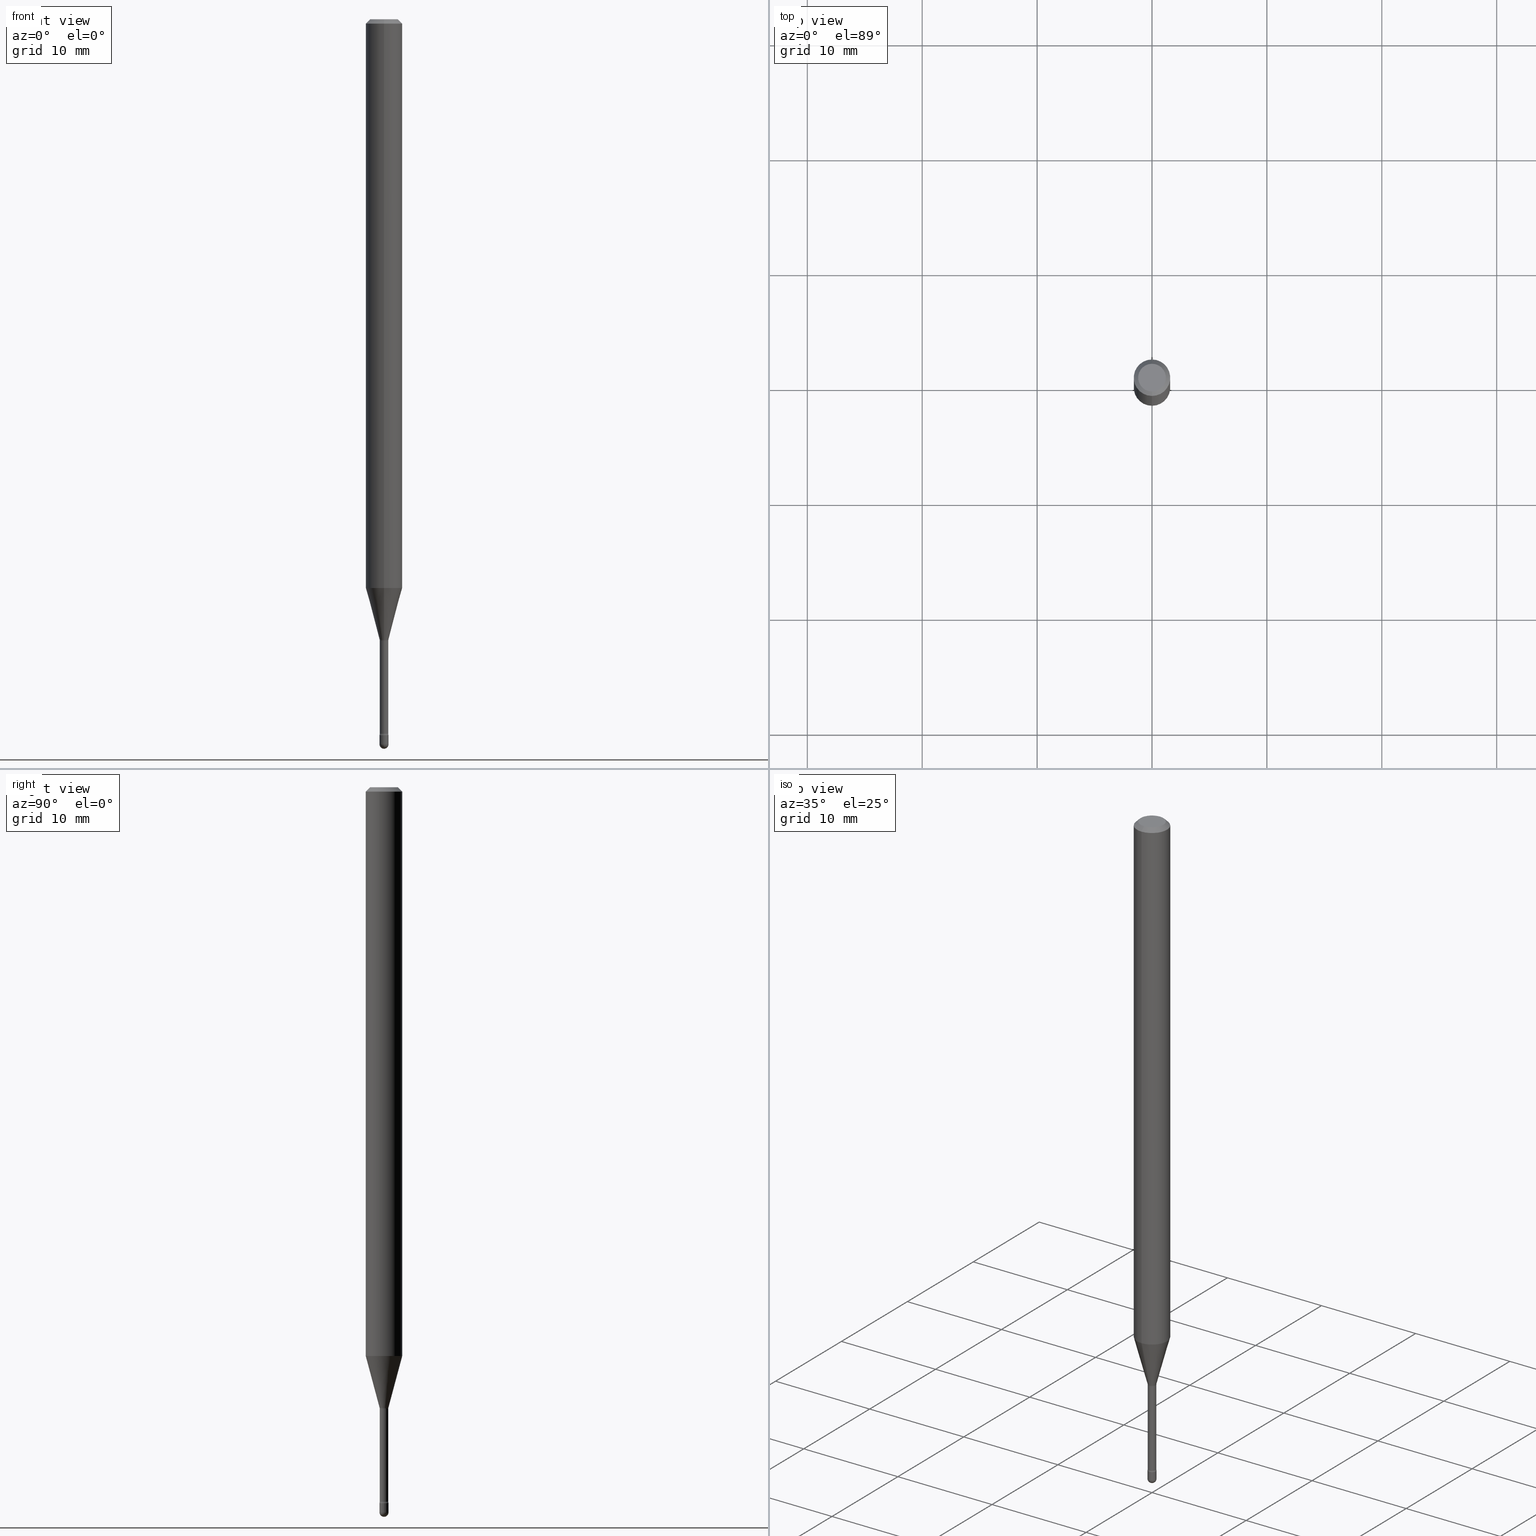
[diagram: canonical four-view strip — front | top / right | iso, engineering-drawing reading convention]
A machine part, canonical four-view strip (front | top / right | iso — engineering-drawing reading convention). The complete STEP part file that produces these views, byte-faithful:
ISO-10303-21;
HEADER;
FILE_DESCRIPTION (( 'STEP AP203' ),
    '1' );
FILE_NAME ('03891.STEP',
    '2024-04-09T20:59:21',
    ( '' ),
    ( '' ),
    'SwSTEP 2.0',
    'SolidWorks 2023',
    '' );
FILE_SCHEMA (( 'CONFIG_CONTROL_DESIGN' ));
ENDSEC;

DATA;
#1 = DIRECTION ( 'NONE',  ( -6.982962677686265922E-15, -1.000000000000000000, 0.000000000000000000 ) ) ;
#2 = ADVANCED_FACE ( 'NONE', ( #401 ), #257, .F. ) ;
#3 = CYLINDRICAL_SURFACE ( 'NONE', #440, 0.06250000000000000000 ) ;
#4 = DATE_TIME_ROLE ( 'classification_date' ) ;
#5 = DIRECTION ( 'NONE',  ( 6.982962677686265922E-15, 1.000000000000000000, -3.491476750488522114E-15 ) ) ;
#6 = AXIS2_PLACEMENT_3D ( 'NONE', #511, #562, #183 ) ;
#7 = AXIS2_PLACEMENT_3D ( 'NONE', #519, #254, #94 ) ;
#8 = CC_DESIGN_APPROVAL ( #404, ( #460 ) ) ;
#9 = LINE ( 'NONE', #140, #317 ) ;
#10 = ADVANCED_FACE ( 'NONE', ( #133 ), #397, .T. ) ;
#11 = ADVANCED_FACE ( 'NONE', ( #142 ), #232, .T. ) ;
#12 = DIRECTION ( 'NONE',  ( -2.445472010216045717E-29, 3.491476750488522114E-15, 1.000000000000000000 ) ) ;
#13 = DIRECTION ( 'NONE',  ( -4.851104656540964275E-15, -0.7071067811865500152, -0.7071067811865450192 ) ) ;
#14 = ORIENTED_EDGE ( 'NONE', *, *, #190, .F. ) ;
#15 = CIRCLE ( 'NONE', #457, 0.01455000000000002125 ) ;
#16 = LINE ( 'NONE', #516, #497 ) ;
#17 = CARTESIAN_POINT ( 'NONE',  ( 2.099653784171697547E-16, 0.02954999999999149626, -2.447746667724196357 ) ) ;
#18 = CARTESIAN_POINT ( 'NONE',  ( -1.169113584055446105E-44, 1.669184350826100908E-30, 4.780733988912460139E-16 ) ) ;
#19 = DIRECTION ( 'NONE',  ( -2.445472010216045436E-29, 3.491476750488522114E-15, 1.000000000000000000 ) ) ;
#20 = EDGE_CURVE ( 'NONE', #243, #537, #156, .T. ) ;
#21 = AXIS2_PLACEMENT_3D ( 'NONE', #312, #56, #564 ) ;
#22 = AXIS2_PLACEMENT_3D ( 'NONE', #107, #19, #322 ) ;
#23 = EDGE_LOOP ( 'NONE', ( #427, #117, #29, #294 ) ) ;
#24 = CC_DESIGN_PERSON_AND_ORGANIZATION_ASSIGNMENT ( #263, #43, ( #345 ) ) ;
#25 = EDGE_CURVE ( 'NONE', #337, #542, #448, .T. ) ;
#26 = ORIENTED_EDGE ( 'NONE', *, *, #552, .F. ) ;
#27 = EDGE_LOOP ( 'NONE', ( #517, #422, #246, #391 ) ) ;
#28 = CIRCLE ( 'NONE', #6, 0.01549999999999993744 ) ;
#29 = ORIENTED_EDGE ( 'NONE', *, *, #520, .T. ) ;
#30 = ORIENTED_EDGE ( 'NONE', *, *, #324, .T. ) ;
#31 = COORDINATED_UNIVERSAL_TIME_OFFSET ( 5, 0, .BEHIND. ) ;
#32 = LINE ( 'NONE', #221, #112 ) ;
#33 = DIRECTION ( 'NONE',  ( -2.445472010216045156E-29, 3.491476750488522114E-15, 1.000000000000000000 ) ) ;
#34 = ORIENTED_EDGE ( 'NONE', *, *, #51, .F. ) ;
#35 = DIRECTION ( 'NONE',  ( 6.982962677686265922E-15, 1.000000000000000000, -3.483106191921935554E-15 ) ) ;
#36 = FACE_OUTER_BOUND ( 'NONE', #453, .T. ) ;
#37 = CIRCLE ( 'NONE', #234, 0.01549999999999999989 ) ;
#38 = SPHERICAL_SURFACE ( 'NONE', #58, 0.01549999999999993744 ) ;
#39 = CIRCLE ( 'NONE', #138, 0.01455000000000002125 ) ;
#40 = EDGE_CURVE ( 'NONE', #325, #265, #37, .T. ) ;
#41 = DIRECTION ( 'NONE',  ( -6.982962677686265922E-15, -1.000000000000000000, 4.370956789862821150E-15 ) ) ;
#42 = DIRECTION ( 'NONE',  ( -2.445472010216045436E-29, 3.491476750488522114E-15, 1.000000000000000000 ) ) ;
#43 = PERSON_AND_ORGANIZATION_ROLE ( 'classification_officer' ) ;
#44 = LINE ( 'NONE', #176, #384 ) ;
#45 = DIRECTION ( 'NONE',  ( -2.445468806185136597E-29, 3.491481338843145583E-15, 1.000000000000000000 ) ) ;
#46 = DIRECTION ( 'NONE',  ( -2.445468806185136597E-29, 3.491481338843145583E-15, 1.000000000000000000 ) ) ;
#47 = DIRECTION ( 'NONE',  ( 1.000000000000000000, -6.982962677686238312E-15, 0.000000000000000000 ) ) ;
#48 = AXIS2_PLACEMENT_3D ( 'NONE', #361, #505, #304 ) ;
#49 = ORIENTED_EDGE ( 'NONE', *, *, #40, .F. ) ;
#50 = CC_DESIGN_APPROVAL ( #455, ( #345 ) ) ;
#51 = EDGE_CURVE ( 'NONE', #366, #162, #416, .T. ) ;
#52 = LINE ( 'NONE', #371, #406 ) ;
#53 = ORIENTED_EDGE ( 'NONE', *, *, #159, .F. ) ;
#54 = CARTESIAN_POINT ( 'NONE',  ( 4.766342731079809553E-29, -6.805056349409992834E-15, -1.949048163777072462 ) ) ;
#55 = DIRECTION ( 'NONE',  ( 7.105427357600999492E-15, 1.000000000000000000, 0.000000000000000000 ) ) ;
#56 = DIRECTION ( 'NONE',  ( -2.445468806185136597E-29, 3.491481338843145583E-15, 1.000000000000000000 ) ) ;
#57 = APPLICATION_PROTOCOL_DEFINITION ( 'international standard', 'config_control_design', 1994, #358 ) ;
#58 = AXIS2_PLACEMENT_3D ( 'NONE', #383, #334, #281 ) ;
#59 = ADVANCED_FACE ( 'NONE', ( #437 ), #411, .T. ) ;
#60 = AXIS2_PLACEMENT_3D ( 'NONE', #531, #33, #362 ) ;
#61 = DIRECTION ( 'NONE',  ( -2.445472010216045436E-29, 3.491476750488522114E-15, 1.000000000000000000 ) ) ;
#62 = APPROVAL_PERSON_ORGANIZATION ( #502, #455, #402 ) ;
#63 = EDGE_LOOP ( 'NONE', ( #208, #154, #134, #161 ) ) ;
#64 =( NAMED_UNIT ( * ) PLANE_ANGLE_UNIT ( ) SI_UNIT ( $, .RADIAN. ) );
#65 = CARTESIAN_POINT ( 'NONE',  ( -1.051711872097297299E-16, -0.01506111260567140342, -2.126092501787273381 ) ) ;
#66 = EDGE_LOOP ( 'NONE', ( #26, #331 ) ) ;
#67 = ADVANCED_FACE ( 'NONE', ( #447 ), #415, .T. ) ;
#68 = ORIENTED_EDGE ( 'NONE', *, *, #20, .F. ) ;
#69 = AXIS2_PLACEMENT_3D ( 'NONE', #446, #409, #526 ) ;
#70 = ORIENTED_EDGE ( 'NONE', *, *, #227, .F. ) ;
#71 = EDGE_LOOP ( 'NONE', ( #538, #425, #110, #14 ) ) ;
#72 = PLANE ( 'NONE',  #247 ) ;
#73 = PERSON_AND_ORGANIZATION ( #494, #200 ) ;
#74 = ORIENTED_EDGE ( 'NONE', *, *, #430, .T. ) ;
#75 = DATE_AND_TIME ( #462, #261 ) ;
#76 = AXIS2_PLACEMENT_3D ( 'NONE', #471, #351, #313 ) ;
#77 = EDGE_LOOP ( 'NONE', ( #501, #488, #303, #68 ) ) ;
#78 = PERSON_AND_ORGANIZATION ( #494, #200 ) ;
#79 = EDGE_LOOP ( 'NONE', ( #370, #431, #81, #536 ) ) ;
#80 = CARTESIAN_POINT ( 'NONE',  ( -1.169113584055446105E-44, 1.669184350826100908E-30, 4.780733988912460139E-16 ) ) ;
#81 = ORIENTED_EDGE ( 'NONE', *, *, #329, .F. ) ;
#82 = DATE_AND_TIME ( #175, #451 ) ;
#83 = LINE ( 'NONE', #563, #158 ) ;
#84 = ADVANCED_FACE ( 'NONE', ( #218 ), #456, .T. ) ;
#85 = DIRECTION ( 'NONE',  ( -2.445472010216045436E-29, 3.491476750488522114E-15, 1.000000000000000000 ) ) ;
#86 = COORDINATED_UNIVERSAL_TIME_OFFSET ( 5, 0, .BEHIND. ) ;
#87 = EDGE_CURVE ( 'NONE', #508, #150, #195, .T. ) ;
#88 = DIRECTION ( 'NONE',  ( -6.982962677686265922E-15, -1.000000000000000000, 3.491476750488521720E-15 ) ) ;
#89 = DIRECTION ( 'NONE',  ( -2.445468806185136597E-29, 3.491481338843145583E-15, 1.000000000000000000 ) ) ;
#90 = CARTESIAN_POINT ( 'NONE',  ( 5.208786900703566889E-29, -7.436767222636291946E-15, -2.129974787463811303 ) ) ;
#91 = CALENDAR_DATE ( 2024, 9, 4 ) ;
#92 = CIRCLE ( 'NONE', #185, 0.01549999999999999989 ) ;
#93 = CARTESIAN_POINT ( 'NONE',  ( 3.668208015324088579E-31, -5.237215125732812531E-17, -0.01500000000000008271 ) ) ;
#94 = DIRECTION ( 'NONE',  ( -6.982962677686266711E-15, -1.000000000000000000, 3.491476750488522508E-15 ) ) ;
#95 = DIRECTION ( 'NONE',  ( -6.982962677686265922E-15, -1.000000000000000000, 3.491476750488522114E-15 ) ) ;
#96 = ADVANCED_FACE ( 'NONE', ( #356 ), #38, .T. ) ;
#97 = DIRECTION ( 'NONE',  ( 6.982962677686265922E-15, 1.000000000000000000, -3.483106191921935554E-15 ) ) ;
#98 = CIRCLE ( 'NONE', #368, 0.01500000000000002373 ) ;
#99 = DIRECTION ( 'NONE',  ( -2.445472010216045436E-29, 3.491476750488522114E-15, 1.000000000000000000 ) ) ;
#100 = PLANE ( 'NONE',  #435 ) ;
#101 = CARTESIAN_POINT ( 'NONE',  ( 3.668208015324088579E-31, -5.237215125732812531E-17, -0.01500000000000008271 ) ) ;
#102 = DIRECTION ( 'NONE',  ( -2.445472010216045436E-29, 3.491476750488522114E-15, 1.000000000000000000 ) ) ;
#103 = CARTESIAN_POINT ( 'NONE',  ( 0.000000000000000000, 0.000000000000000000, 0.000000000000000000 ) ) ;
#104 = CC_DESIGN_PERSON_AND_ORGANIZATION_ASSIGNMENT ( #233, #357, ( #452 ) ) ;
#105 = CARTESIAN_POINT ( 'NONE',  ( 6.075767248966972494E-29, -8.674585386355795965E-15, -2.484500000000000153 ) ) ;
#106 = VECTOR ( 'NONE', #414, 39.37007874015748143 ) ;
#107 = CARTESIAN_POINT ( 'NONE',  ( 5.985888121363136129E-29, -8.546261812574526278E-15, -2.447746667724196357 ) ) ;
#108 = VERTEX_POINT ( 'NONE', #157 ) ;
#109 = EDGE_CURVE ( 'NONE', #150, #291, #343, .T. ) ;
#110 = ORIENTED_EDGE ( 'NONE', *, *, #20, .T. ) ;
#111 = VERTEX_POINT ( 'NONE', #240 ) ;
#112 = VECTOR ( 'NONE', #389, 39.37007874015748854 ) ;
#113 = AXIS2_PLACEMENT_3D ( 'NONE', #275, #442, #97 ) ;
#114 = DIMENSIONAL_EXPONENTS ( 1.000000000000000000, 0.000000000000000000, 0.000000000000000000, 0.000000000000000000, 0.000000000000000000, 0.000000000000000000, 0.000000000000000000 ) ;
#115 = ORIENTED_EDGE ( 'NONE', *, *, #25, .F. ) ;
#116 = DIRECTION ( 'NONE',  ( -2.445468806185136597E-29, 3.491481338843145583E-15, 1.000000000000000000 ) ) ;
#117 = ORIENTED_EDGE ( 'NONE', *, *, #394, .T. ) ;
#118 = APPROVAL_STATUS ( 'not_yet_approved' ) ;
#119 = ADVANCED_FACE ( 'NONE', ( #289 ), #72, .F. ) ;
#120 = ORIENTED_EDGE ( 'NONE', *, *, #227, .T. ) ;
#121 = CIRCLE ( 'NONE', #506, 0.01549999999999993744 ) ;
#122 = FACE_OUTER_BOUND ( 'NONE', #503, .T. ) ;
#123 = ORIENTED_EDGE ( 'NONE', *, *, #153, .F. ) ;
#124 = CC_DESIGN_PERSON_AND_ORGANIZATION_ASSIGNMENT ( #338, #336, ( #460 ) ) ;
#125 = FACE_OUTER_BOUND ( 'NONE', #204, .T. ) ;
#126 = DIRECTION ( 'NONE',  ( 7.105427357601001859E-15, 1.000000000000000000, 0.000000000000000000 ) ) ;
#127 = CARTESIAN_POINT ( 'NONE',  ( -0.01549999999999999989, 1.101341240428155280E-16, -7.624349389895103058E-31 ) ) ;
#128 = CARTESIAN_POINT ( 'NONE',  ( 1.101341240428755801E-16, 0.01549999999999144597, -2.452999999999999847 ) ) ;
#129 = CARTESIAN_POINT ( 'NONE',  ( -1.016021069602831037E-16, -0.01455000000000743893, -2.129974787463811303 ) ) ;
#130 = EDGE_LOOP ( 'NONE', ( #70, #551, #49, #284 ) ) ;
#131 = CARTESIAN_POINT ( 'NONE',  ( 5.998734981572139453E-29, -8.564603724182235719E-15, -2.452999999999999847 ) ) ;
#132 = AXIS2_PLACEMENT_3D ( 'NONE', #101, #365, #273 ) ;
#133 = FACE_OUTER_BOUND ( 'NONE', #288, .T. ) ;
#134 = ORIENTED_EDGE ( 'NONE', *, *, #283, .F. ) ;
#135 = CARTESIAN_POINT ( 'NONE',  ( 0.01549999999999999989, -1.082359215041371286E-16, 7.558074002483699918E-31 ) ) ;
#136 = APPROVAL_ROLE ( '' ) ;
#137 = LINE ( 'NONE', #545, #106 ) ;
#138 = AXIS2_PLACEMENT_3D ( 'NONE', #326, #99, #449 ) ;
#139 = DIRECTION ( 'NONE',  ( -2.445472010216045717E-29, 3.491476750488522114E-15, 1.000000000000000000 ) ) ;
#140 = CARTESIAN_POINT ( 'NONE',  ( 1.033839680530946418E-16, 0.01455000000000001084, 4.272724121716380271E-16 ) ) ;
#141 = SHAPE_DEFINITION_REPRESENTATION ( #369, #408 ) ;
#142 = FACE_OUTER_BOUND ( 'NONE', #458, .T. ) ;
#143 = CC_DESIGN_PERSON_AND_ORGANIZATION_ASSIGNMENT ( #78, #509, ( #485 ) ) ;
#144 = DIRECTION ( 'NONE',  ( -2.445472010216045436E-29, 3.491476750488522114E-15, 1.000000000000000000 ) ) ;
#145 = CARTESIAN_POINT ( 'NONE',  ( 5.208793725208621323E-29, -7.436757449556626485E-15, -2.129974787463811303 ) ) ;
#146 = CARTESIAN_POINT ( 'NONE',  ( 2.023576156042687140E-45, -2.889079060357795075E-31, -8.274725001839003954E-17 ) ) ;
#147 = VERTEX_POINT ( 'NONE', #128 ) ;
#148 = MANIFOLD_SOLID_BREP ( 'Body-Move/Copy2[2]', #359 ) ;
#149 = FACE_OUTER_BOUND ( 'NONE', #388, .T. ) ;
#150 = VERTEX_POINT ( 'NONE', #399 ) ;
#151 = AXIS2_PLACEMENT_3D ( 'NONE', #267, #226, #189 ) ;
#152 =( NAMED_UNIT ( * ) SI_UNIT ( $, .STERADIAN. ) SOLID_ANGLE_UNIT ( ) );
#153 = EDGE_CURVE ( 'NONE', #542, #111, #32, .T. ) ;
#154 = ORIENTED_EDGE ( 'NONE', *, *, #423, .T. ) ;
#155 = ORIENTED_EDGE ( 'NONE', *, *, #153, .T. ) ;
#156 = CIRCLE ( 'NONE', #477, 0.01455000000000000217 ) ;
#157 = CARTESIAN_POINT ( 'NONE',  ( -4.364351673553439926E-16, -0.06250000000000681399, -1.949048163777072240 ) ) ;
#158 = VECTOR ( 'NONE', #139, 39.37007874015748143 ) ;
#159 = EDGE_CURVE ( 'NONE', #162, #421, #44, .T. ) ;
#160 = APPLICATION_PROTOCOL_DEFINITION ( 'international standard', 'config_control_design', 1994, #290 ) ;
#161 = ORIENTED_EDGE ( 'NONE', *, *, #379, .F. ) ;
#162 = VERTEX_POINT ( 'NONE', #253 ) ;
#163 = APPROVAL_STATUS ( 'not_yet_approved' ) ;
#164 = ORIENTED_EDGE ( 'NONE', *, *, #269, .F. ) ;
#165 = DATE_AND_TIME ( #91, #270 ) ;
#166 = DIRECTION ( 'NONE',  ( -2.445472010216045436E-29, 3.491476750488522114E-15, 1.000000000000000000 ) ) ;
#167 = VERTEX_POINT ( 'NONE', #300 ) ;
#168 = COORDINATED_UNIVERSAL_TIME_OFFSET ( 5, 0, .BEHIND. ) ;
#169 = ADVANCED_FACE ( 'NONE', ( #170 ), #205, .F. ) ;
#170 = FACE_OUTER_BOUND ( 'NONE', #27, .T. ) ;
#171 = CIRCLE ( 'NONE', #393, 0.01549999999999999989 ) ;
#172 = DIRECTION ( 'NONE',  ( 1.000000000000000000, -6.982962677686301420E-15, 0.000000000000000000 ) ) ;
#173 = EDGE_CURVE ( 'NONE', #335, #464, #276, .T. ) ;
#174 = DIRECTION ( 'NONE',  ( -6.982962677686266711E-15, -1.000000000000000000, 3.491476750488522508E-15 ) ) ;
#175 = CALENDAR_DATE ( 2024, 9, 4 ) ;
#176 = CARTESIAN_POINT ( 'NONE',  ( 4.364351673553919652E-16, 0.06249999999999995143, -0.01500000000000030129 ) ) ;
#177 = DIRECTION ( 'NONE',  ( -6.982962677686265922E-15, -1.000000000000000000, 3.491476750488521720E-15 ) ) ;
#178 = DIRECTION ( 'NONE',  ( -6.982962677686265922E-15, -1.000000000000000000, 0.000000000000000000 ) ) ;
#179 = PERSON_AND_ORGANIZATION_ROLE ( 'design_supplier' ) ;
#180 = DIRECTION ( 'NONE',  ( -1.000000000000000000, 7.105427357601001070E-15, -4.926315508542082329E-29 ) ) ;
#181 = DIRECTION ( 'NONE',  ( -6.982962677686265922E-15, -1.000000000000000000, 0.000000000000000000 ) ) ;
#182 = DIRECTION ( 'NONE',  ( -6.982962677686266711E-15, -1.000000000000000000, 0.000000000000000000 ) ) ;
#183 = DIRECTION ( 'NONE',  ( 6.982962677686265922E-15, 1.000000000000000000, 0.000000000000000000 ) ) ;
#184 = CARTESIAN_POINT ( 'NONE',  ( 4.440892098500625669E-16, 0.06250000000000000000, 2.598561019857134311E-16 ) ) ;
#185 = AXIS2_PLACEMENT_3D ( 'NONE', #260, #405, #181 ) ;
#186 = FACE_OUTER_BOUND ( 'NONE', #320, .T. ) ;
#187 = PLANE ( 'NONE',  #60 ) ;
#188 = EDGE_CURVE ( 'NONE', #554, #265, #28, .T. ) ;
#189 = DIRECTION ( 'NONE',  ( -6.982962677686265922E-15, -1.000000000000000000, 3.491476750488522114E-15 ) ) ;
#190 = EDGE_CURVE ( 'NONE', #337, #537, #327, .T. ) ;
#191 = ORIENTED_EDGE ( 'NONE', *, *, #244, .T. ) ;
#192 = AXIS2_PLACEMENT_3D ( 'NONE', #355, #210, #126 ) ;
#193 = DIRECTION ( 'NONE',  ( -2.445472010216045436E-29, 3.491476750488522114E-15, 1.000000000000000000 ) ) ;
#194 = CARTESIAN_POINT ( 'NONE',  ( -1.016021069602754616E-16, -0.01455000000000856650, -2.447746667724196357 ) ) ;
#195 = LINE ( 'NONE', #127, #286 ) ;
#196 = VERTEX_POINT ( 'NONE', #346 ) ;
#197 = CARTESIAN_POINT ( 'NONE',  ( 1.067590460480150938E-16, 0.01454999999999147600, -2.447746667724196357 ) ) ;
#198 = ADVANCED_FACE ( 'NONE', ( #125 ), #224, .T. ) ;
#199 = AXIS2_PLACEMENT_3D ( 'NONE', #18, #42, #302 ) ;
#200 = ORGANIZATION ( 'UNSPECIFIED', 'UNSPECIFIED', '' ) ;
#201 = ORIENTED_EDGE ( 'NONE', *, *, #378, .F. ) ;
#202 = ORIENTED_EDGE ( 'NONE', *, *, #51, .T. ) ;
#203 = EDGE_CURVE ( 'NONE', #542, #337, #463, .T. ) ;
#204 = EDGE_LOOP ( 'NONE', ( #164, #557, #245, #30 ) ) ;
#205 = TOROIDAL_SURFACE ( 'NONE', #522, 0.02955000000000004151, 0.01500000000000002200 ) ;
#206 = CIRCLE ( 'NONE', #132, 0.06250000000000000000 ) ;
#207 = ORIENTED_EDGE ( 'NONE', *, *, #109, .T. ) ;
#208 = ORIENTED_EDGE ( 'NONE', *, *, #285, .T. ) ;
#209 = COORDINATED_UNIVERSAL_TIME_OFFSET ( 5, 0, .BEHIND. ) ;
#210 = DIRECTION ( 'NONE',  ( 1.000000000000000000, -7.105427357601001070E-15, 4.926315452350944372E-29 ) ) ;
#211 = ORIENTED_EDGE ( 'NONE', *, *, #203, .T. ) ;
#212 = APPROVAL_DATE_TIME ( #82, #444 ) ;
#213 = AXIS2_PLACEMENT_3D ( 'NONE', #549, #116, #500 ) ;
#214 = AXIS2_PLACEMENT_3D ( 'NONE', #486, #315, #540 ) ;
#215 =( LENGTH_UNIT ( ) NAMED_UNIT ( * ) SI_UNIT ( $, .METRE. ) );
#216 = ORIENTED_EDGE ( 'NONE', *, *, #530, .T. ) ;
#217 = DIRECTION ( 'NONE',  ( -2.438088387897960049E-29, 3.491481338843145188E-15, 1.000000000000000000 ) ) ;
#218 = FACE_OUTER_BOUND ( 'NONE', #461, .T. ) ;
#219 = CALENDAR_DATE ( 2024, 9, 4 ) ;
#220 = ADVANCED_FACE ( 'NONE', ( #515 ), #3, .T. ) ;
#221 = CARTESIAN_POINT ( 'NONE',  ( 1.070156415442461480E-16, 0.01506111260565655766, -2.126092501787273381 ) ) ;
#222 = DIRECTION ( 'NONE',  ( -2.445472010216045436E-29, 3.491476750488522114E-15, 1.000000000000000000 ) ) ;
#223 = CARTESIAN_POINT ( 'NONE',  ( -1.169113584055446105E-44, 1.669184350826100908E-30, 4.780733988912460139E-16 ) ) ;
#224 = CONICAL_SURFACE ( 'NONE', #268, 0.06250000000000000000, 0.7853981633974483900 ) ;
#225 = CIRCLE ( 'NONE', #69, 0.06250000000000000000 ) ;
#226 = DIRECTION ( 'NONE',  ( -2.445472010216045436E-29, 3.491476750488522114E-15, 1.000000000000000000 ) ) ;
#227 = EDGE_CURVE ( 'NONE', #554, #196, #121, .T. ) ;
#228 = CARTESIAN_POINT ( 'NONE',  ( 0.01549999999999999989, -8.727830476773153796E-15, -2.484500000000000153 ) ) ;
#229 = DIRECTION ( 'NONE',  ( 0.000000000000000000, 0.000000000000000000, 1.000000000000000000 ) ) ;
#230 = DIRECTION ( 'NONE',  ( 1.000000000000000000, -6.982962677686301420E-15, 0.000000000000000000 ) ) ;
#231 = DIRECTION ( 'NONE',  ( -6.982962677686265922E-15, -1.000000000000000000, 0.000000000000000000 ) ) ;
#232 = CYLINDRICAL_SURFACE ( 'NONE', #424, 0.01549999999999999989 ) ;
#233 = PERSON_AND_ORGANIZATION ( #494, #200 ) ;
#234 = AXIS2_PLACEMENT_3D ( 'NONE', #262, #46, #255 ) ;
#235 = CIRCLE ( 'NONE', #192, 0.01500000000000002373 ) ;
#236 = DIRECTION ( 'NONE',  ( -2.445472010216045436E-29, 3.491476750488522114E-15, 1.000000000000000000 ) ) ;
#237 = EDGE_CURVE ( 'NONE', #291, #150, #419, .T. ) ;
#238 = CARTESIAN_POINT ( 'NONE',  ( 3.316907271900976096E-16, 0.04749999999999999362, 3.181792878822327084E-17 ) ) ;
#239 = ORIENTED_EDGE ( 'NONE', *, *, #507, .F. ) ;
#240 = CARTESIAN_POINT ( 'NONE',  ( 4.440892098501100464E-16, 0.06249999999999317907, -1.949048163777072684 ) ) ;
#241 = AXIS2_PLACEMENT_3D ( 'NONE', #90, #480, #95 ) ;
#242 = CIRCLE ( 'NONE', #565, 0.01549999999999999989 ) ;
#243 = VERTEX_POINT ( 'NONE', #524 ) ;
#244 = EDGE_CURVE ( 'NONE', #147, #464, #171, .T. ) ;
#245 = ORIENTED_EDGE ( 'NONE', *, *, #159, .T. ) ;
#246 = ORIENTED_EDGE ( 'NONE', *, *, #173, .T. ) ;
#247 = AXIS2_PLACEMENT_3D ( 'NONE', #238, #428, #5 ) ;
#248 = CIRCLE ( 'NONE', #417, 0.06250000000000000000 ) ;
#249 = LOCAL_TIME ( 16, 59, 21.00000000000000000, #31 ) ;
#250 = ORIENTED_EDGE ( 'NONE', *, *, #237, .T. ) ;
#251 = SECURITY_CLASSIFICATION_LEVEL ( 'unclassified' ) ;
#252 = ADVANCED_FACE ( 'NONE', ( #122 ), #309, .F. ) ;
#253 = CARTESIAN_POINT ( 'NONE',  ( 3.840629472727447874E-16, 0.04749999999999999362, -2.485923956665948360E-16 ) ) ;
#254 = DIRECTION ( 'NONE',  ( -2.445472010216045436E-29, 3.491476750488522114E-15, 1.000000000000000000 ) ) ;
#255 = DIRECTION ( 'NONE',  ( 1.000000000000000000, -6.982962677686301420E-15, 0.000000000000000000 ) ) ;
#256 = CALENDAR_DATE ( 2024, 9, 4 ) ;
#257 = TOROIDAL_SURFACE ( 'NONE', #241, 0.02954999999999999988, 0.01500000000000002547 ) ;
#258 = CARTESIAN_POINT ( 'NONE',  ( 6.075767248966972494E-29, -8.674585386355795965E-15, -2.484500000000000153 ) ) ;
#259 = VECTOR ( 'NONE', #319, 39.37007874015748143 ) ;
#260 = CARTESIAN_POINT ( 'NONE',  ( 5.998742841059959912E-29, -8.564592468948344431E-15, -2.452999999999999847 ) ) ;
#261 = LOCAL_TIME ( 16, 59, 21.00000000000000000, #209 ) ;
#262 = CARTESIAN_POINT ( 'NONE',  ( 6.075767248966972494E-29, -8.674585386355795965E-15, -2.484500000000000153 ) ) ;
#263 = PERSON_AND_ORGANIZATION ( #494, #200 ) ;
#264 = DIRECTION ( 'NONE',  ( -7.105427357601001070E-15, -1.000000000000000000, 0.000000000000000000 ) ) ;
#265 = VERTEX_POINT ( 'NONE', #484 ) ;
#266 = DIRECTION ( 'NONE',  ( 2.445472010216045436E-29, -3.491476750488522114E-15, -1.000000000000000000 ) ) ;
#267 = CARTESIAN_POINT ( 'NONE',  ( 5.208786900703566889E-29, -7.436767222636291946E-15, -2.129974787463811303 ) ) ;
#268 = AXIS2_PLACEMENT_3D ( 'NONE', #93, #266, #35 ) ;
#269 = EDGE_CURVE ( 'NONE', #366, #167, #52, .T. ) ;
#270 = LOCAL_TIME ( 16, 59, 21.00000000000000000, #374 ) ;
#271 = DIRECTION ( 'NONE',  ( 1.000000000000000000, -6.982962677686301420E-15, 0.000000000000000000 ) ) ;
#272 = CARTESIAN_POINT ( 'NONE',  ( 6.075767248966972494E-29, -8.674585386355795965E-15, -2.484500000000000153 ) ) ;
#273 = DIRECTION ( 'NONE',  ( -6.982962677686265922E-15, -1.000000000000000000, 3.483106191921935554E-15 ) ) ;
#274 = CARTESIAN_POINT ( 'NONE',  ( 0.000000000000000000, 0.000000000000000000, 0.000000000000000000 ) ) ;
#275 = CARTESIAN_POINT ( 'NONE',  ( 3.668208015324088579E-31, -5.237215125732812531E-17, -0.01500000000000008271 ) ) ;
#276 = CIRCLE ( 'NONE', #295, 0.01500000000000002373 ) ;
#277 = CIRCLE ( 'NONE', #483, 0.01549999999999999989 ) ;
#278 = ORIENTED_EDGE ( 'NONE', *, *, #25, .T. ) ;
#279 = DIRECTION ( 'NONE',  ( -2.445468806185136597E-29, 3.491481338843145583E-15, 1.000000000000000000 ) ) ;
#280 = ORIENTED_EDGE ( 'NONE', *, *, #558, .T. ) ;
#281 = DIRECTION ( 'NONE',  ( 6.982962677686265922E-15, 1.000000000000000000, 0.000000000000000000 ) ) ;
#282 = ORIENTED_EDGE ( 'NONE', *, *, #394, .F. ) ;
#283 = EDGE_CURVE ( 'NONE', #537, #243, #523, .T. ) ;
#284 = ORIENTED_EDGE ( 'NONE', *, *, #530, .F. ) ;
#285 = EDGE_CURVE ( 'NONE', #335, #330, #39, .T. ) ;
#286 = VECTOR ( 'NONE', #473, 39.37007874015748143 ) ;
#287 = AXIS2_PLACEMENT_3D ( 'NONE', #525, #144, #41 ) ;
#288 = EDGE_LOOP ( 'NONE', ( #498, #385, #547, #307, #382 ) ) ;
#289 = FACE_OUTER_BOUND ( 'NONE', #328, .T. ) ;
#290 = APPLICATION_CONTEXT ( 'configuration controlled 3d designs of mechanical parts and assemblies' ) ;
#291 = VERTEX_POINT ( 'NONE', #489 ) ;
#292 = DATE_AND_TIME ( #219, #249 ) ;
#293 = CC_DESIGN_PERSON_AND_ORGANIZATION_ASSIGNMENT ( #349, #179, ( #485 ) ) ;
#294 = ORIENTED_EDGE ( 'NONE', *, *, #324, .F. ) ;
#295 = AXIS2_PLACEMENT_3D ( 'NONE', #518, #438, #403 ) ;
#296 =( GEOMETRIC_REPRESENTATION_CONTEXT ( 3 ) GLOBAL_UNCERTAINTY_ASSIGNED_CONTEXT ( ( #466 ) ) GLOBAL_UNIT_ASSIGNED_CONTEXT ( ( #381, #64, #152 ) ) REPRESENTATION_CONTEXT ( 'NONE', 'WORKASPACE' ) );
#297 = LOCAL_TIME ( 16, 59, 21.00000000000000000, #86 ) ;
#298 = DIRECTION ( 'NONE',  ( -6.982962677686265922E-15, -1.000000000000000000, 0.000000000000000000 ) ) ;
#299 = ORIENTED_EDGE ( 'NONE', *, *, #529, .F. ) ;
#300 = CARTESIAN_POINT ( 'NONE',  ( -4.364351673553912750E-16, -0.06250000000000005551, -0.01499999999999986587 ) ) ;
#301 = SPHERICAL_SURFACE ( 'NONE', #492, 0.01549999999999993744 ) ;
#302 = DIRECTION ( 'NONE',  ( -6.982962677686266711E-15, -1.000000000000000000, 3.491476750488523297E-15 ) ) ;
#303 = ORIENTED_EDGE ( 'NONE', *, *, #379, .T. ) ;
#304 = DIRECTION ( 'NONE',  ( -6.982962677686265922E-15, -1.000000000000000000, 0.000000000000000000 ) ) ;
#305 = CARTESIAN_POINT ( 'NONE',  ( -0.01549999999999999989, -8.509460431226201399E-15, -2.484500000000000153 ) ) ;
#306 = CC_DESIGN_DATE_AND_TIME_ASSIGNMENT ( #292, #4, ( #345 ) ) ;
#307 = ORIENTED_EDGE ( 'NONE', *, *, #430, .F. ) ;
#308 = DIRECTION ( 'NONE',  ( -2.445468806185136597E-29, 3.491481338843145583E-15, 1.000000000000000000 ) ) ;
#309 = TOROIDAL_SURFACE ( 'NONE', #22, 0.02955000000000004151, 0.01500000000000002200 ) ;
#310 = DIRECTION ( 'NONE',  ( 1.000000000000000000, -6.982962677686265922E-15, 4.876176775795935793E-29 ) ) ;
#311 = CC_DESIGN_APPROVAL ( #444, ( #485 ) ) ;
#312 = CARTESIAN_POINT ( 'NONE',  ( 0.000000000000000000, 0.000000000000000000, 0.000000000000000000 ) ) ;
#313 = DIRECTION ( 'NONE',  ( -6.982962677686266711E-15, -1.000000000000000000, 0.000000000000000000 ) ) ;
#314 = DESIGN_CONTEXT ( 'detailed design', #290, 'design' ) ;
#315 = DIRECTION ( 'NONE',  ( -2.445472010216045436E-29, 3.491476750488522114E-15, 1.000000000000000000 ) ) ;
#316 = DIRECTION ( 'NONE',  ( -6.982962677686266711E-15, -1.000000000000000000, 0.000000000000000000 ) ) ;
#317 = VECTOR ( 'NONE', #12, 39.37007874015748143 ) ;
#318 = DIRECTION ( 'NONE',  ( 1.000000000000000000, 0.000000000000000000, 0.000000000000000000 ) ) ;
#319 = DIRECTION ( 'NONE',  ( -2.445468806185136877E-29, 3.491481338843145188E-15, 1.000000000000000000 ) ) ;
#320 = EDGE_LOOP ( 'NONE', ( #34, #341, #387, #53 ) ) ;
#321 = ORIENTED_EDGE ( 'NONE', *, *, #173, .F. ) ;
#322 = DIRECTION ( 'NONE',  ( -6.982962677686265922E-15, -1.000000000000000000, 3.491476750488522114E-15 ) ) ;
#323 = CARTESIAN_POINT ( 'NONE',  ( -1.169113584055446105E-44, 1.669184350826100908E-30, 4.780733988912460139E-16 ) ) ;
#324 = EDGE_CURVE ( 'NONE', #421, #167, #206, .T. ) ;
#325 = VERTEX_POINT ( 'NONE', #228 ) ;
#326 = CARTESIAN_POINT ( 'NONE',  ( 5.985895964019116590E-29, -8.546250581444786398E-15, -2.447746667724196357 ) ) ;
#327 = CIRCLE ( 'NONE', #76, 0.01500000000000002373 ) ;
#328 = EDGE_LOOP ( 'NONE', ( #280, #202 ) ) ;
#329 = EDGE_CURVE ( 'NONE', #167, #421, #225, .T. ) ;
#330 = VERTEX_POINT ( 'NONE', #197 ) ;
#331 = ORIENTED_EDGE ( 'NONE', *, *, #244, .F. ) ;
#332 = AXIS2_PLACEMENT_3D ( 'NONE', #487, #541, #1 ) ;
#333 = VECTOR ( 'NONE', #512, 39.37007874015748143 ) ;
#334 = DIRECTION ( 'NONE',  ( -1.000000000000000000, 6.982962677686265922E-15, -4.883557194083112901E-29 ) ) ;
#335 = VERTEX_POINT ( 'NONE', #194 ) ;
#336 = PERSON_AND_ORGANIZATION_ROLE ( 'creator' ) ;
#337 = VERTEX_POINT ( 'NONE', #65 ) ;
#338 = PERSON_AND_ORGANIZATION ( #494, #200 ) ;
#339 = EDGE_LOOP ( 'NONE', ( #250, #207 ) ) ;
#340 = DIRECTION ( 'NONE',  ( -2.445472010216045436E-29, 3.491476750488522114E-15, 1.000000000000000000 ) ) ;
#341 = ORIENTED_EDGE ( 'NONE', *, *, #269, .T. ) ;
#342 = DATE_AND_TIME ( #256, #297 ) ;
#343 = CIRCLE ( 'NONE', #213, 0.01549999999999999989 ) ;
#344 = AXIS2_PLACEMENT_3D ( 'NONE', #145, #236, #316 ) ;
#345 = SECURITY_CLASSIFICATION ( '', '', #251 ) ;
#346 = CARTESIAN_POINT ( 'NONE',  ( -1.101341240427545269E-16, -0.01550000000000864402, -2.484500000000000153 ) ) ;
#347 = LINE ( 'NONE', #184, #333 ) ;
#348 = CARTESIAN_POINT ( 'NONE',  ( 5.199299704250984208E-29, -7.423202539378241076E-15, -2.126092501787273381 ) ) ;
#349 = PERSON_AND_ORGANIZATION ( #494, #200 ) ;
#350 = EDGE_CURVE ( 'NONE', #330, #147, #98, .T. ) ;
#351 = DIRECTION ( 'NONE',  ( -1.000000000000000000, 6.982962677686265922E-15, -4.883557194083112340E-29 ) ) ;
#352 = EDGE_CURVE ( 'NONE', #330, #335, #15, .T. ) ;
#353 = DIRECTION ( 'NONE',  ( 1.000000000000000000, -6.982962677686266711E-15, 4.876176775795935232E-29 ) ) ;
#354 = APPROVAL_DATE_TIME ( #165, #404 ) ;
#355 = CARTESIAN_POINT ( 'NONE',  ( 2.099653784171616442E-16, 0.02954999999999256485, -2.129974787463811303 ) ) ;
#356 = FACE_OUTER_BOUND ( 'NONE', #130, .T. ) ;
#357 = PERSON_AND_ORGANIZATION_ROLE ( 'design_owner' ) ;
#358 = APPLICATION_CONTEXT ( 'configuration controlled 3d designs of mechanical parts and assemblies' ) ;
#359 = CLOSED_SHELL ( 'NONE', ( #2, #59, #252, #392, #496, #84, #443, #220, #198, #119, #468, #169, #67, #467 ) ) ;
#360 = AXIS2_PLACEMENT_3D ( 'NONE', #396, #89, #230 ) ;
#361 = CARTESIAN_POINT ( 'NONE',  ( 5.199299704250984208E-29, -7.423202539378241076E-15, -2.126092501787273381 ) ) ;
#362 = DIRECTION ( 'NONE',  ( -6.982962677686265922E-15, -1.000000000000000000, 3.491476750488522114E-15 ) ) ;
#363 = PRODUCT_RELATED_PRODUCT_CATEGORY ( 'detail', '', ( #452 ) ) ;
#364 = CARTESIAN_POINT ( 'NONE',  ( 5.985895964019116590E-29, -8.546250581444786398E-15, -2.447746667724196357 ) ) ;
#365 = DIRECTION ( 'NONE',  ( -2.445472010216045436E-29, 3.491476750488522114E-15, 1.000000000000000000 ) ) ;
#366 = VERTEX_POINT ( 'NONE', #407 ) ;
#367 = AXIS2_PLACEMENT_3D ( 'NONE', #146, #222, #174 ) ;
#368 = AXIS2_PLACEMENT_3D ( 'NONE', #17, #491, #55 ) ;
#369 = PRODUCT_DEFINITION_SHAPE ( 'NONE', 'NONE',  #460 ) ;
#370 = ORIENTED_EDGE ( 'NONE', *, *, #481, .T. ) ;
#371 = CARTESIAN_POINT ( 'NONE',  ( -4.287811248607203282E-16, -0.06250000000000005551, -0.01499999999999986587 ) ) ;
#372 = ORIENTED_EDGE ( 'NONE', *, *, #283, .T. ) ;
#373 = FACE_OUTER_BOUND ( 'NONE', #380, .T. ) ;
#374 = COORDINATED_UNIVERSAL_TIME_OFFSET ( 5, 0, .BEHIND. ) ;
#375 = AXIS2_PLACEMENT_3D ( 'NONE', #103, #229, #318 ) ;
#376 = ORIENTED_EDGE ( 'NONE', *, *, #109, .F. ) ;
#377 = CC_DESIGN_SECURITY_CLASSIFICATION ( #345, ( #485 ) ) ;
#378 = EDGE_CURVE ( 'NONE', #265, #508, #277, .T. ) ;
#379 = EDGE_CURVE ( 'NONE', #335, #537, #137, .T. ) ;
#380 = EDGE_LOOP ( 'NONE', ( #123, #211, #528, #282 ) ) ;
#381 =( CONVERSION_BASED_UNIT ( 'INCH', #544 ) LENGTH_UNIT ( ) NAMED_UNIT ( #114 ) );
#382 = ORIENTED_EDGE ( 'NONE', *, *, #40, .T. ) ;
#383 = CARTESIAN_POINT ( 'NONE',  ( 6.075767248966972494E-29, -8.674585386355795965E-15, -2.484500000000000153 ) ) ;
#384 = VECTOR ( 'NONE', #395, 39.37007874015748143 ) ;
#385 = ORIENTED_EDGE ( 'NONE', *, *, #87, .T. ) ;
#386 = CONICAL_SURFACE ( 'NONE', #214, 0.01506111260566398054, 0.2617993877991495189 ) ;
#387 = ORIENTED_EDGE ( 'NONE', *, *, #329, .T. ) ;
#388 = EDGE_LOOP ( 'NONE', ( #470, #115, #561, #372 ) ) ;
#389 = DIRECTION ( 'NONE',  ( 1.839019923739594793E-15, 0.2588190451025241812, 0.9659258262890673130 ) ) ;
#390 = FACE_OUTER_BOUND ( 'NONE', #79, .T. ) ;
#391 = ORIENTED_EDGE ( 'NONE', *, *, #552, .T. ) ;
#392 = ADVANCED_FACE ( 'NONE', ( #186 ), #534, .T. ) ;
#393 = AXIS2_PLACEMENT_3D ( 'NONE', #560, #340, #298 ) ;
#394 = EDGE_CURVE ( 'NONE', #111, #108, #248, .T. ) ;
#395 = DIRECTION ( 'NONE',  ( 4.937700262164548042E-15, 0.7071067811865451302, -0.7071067811865499042 ) ) ;
#396 = CARTESIAN_POINT ( 'NONE',  ( 6.075767248966972494E-29, -8.674585386355795965E-15, -2.484500000000000153 ) ) ;
#397 = CYLINDRICAL_SURFACE ( 'NONE', #21, 0.01549999999999999989 ) ;
#398 = APPROVAL_ROLE ( '' ) ;
#399 = CARTESIAN_POINT ( 'NONE',  ( -0.01549999999999999989, -8.509460431226201399E-15, -2.452999999999999847 ) ) ;
#400 = DIRECTION ( 'NONE',  ( -1.000000000000000000, 6.982962677686265922E-15, -4.883557194083112901E-29 ) ) ;
#401 = FACE_OUTER_BOUND ( 'NONE', #71, .T. ) ;
#402 = APPROVAL_ROLE ( '' ) ;
#403 = DIRECTION ( 'NONE',  ( -6.982962677686265133E-15, -1.000000000000000000, 0.000000000000000000 ) ) ;
#404 = APPROVAL ( #163, 'UNSPECIFIED' ) ;
#405 = DIRECTION ( 'NONE',  ( -2.445472010216045436E-29, 3.491476750488522114E-15, 1.000000000000000000 ) ) ;
#406 = VECTOR ( 'NONE', #13, 39.37007874015748143 ) ;
#407 = CARTESIAN_POINT ( 'NONE',  ( -3.773273898774340269E-16, -0.04749999999999999362, 8.309789562981476926E-17 ) ) ;
#408 = ADVANCED_BREP_SHAPE_REPRESENTATION ( '03891', ( #543, #148, #375 ), #296 ) ;
#409 = DIRECTION ( 'NONE',  ( -2.445472010216045436E-29, 3.491476750488522114E-15, 1.000000000000000000 ) ) ;
#410 = CARTESIAN_POINT ( 'NONE',  ( -1.082359215040771998E-16, -0.01550000000000857463, -2.452999999999999847 ) ) ;
#411 = CYLINDRICAL_SURFACE ( 'NONE', #555, 0.01455000000000001084 ) ;
#412 = MECHANICAL_CONTEXT ( 'NONE', #358, 'mechanical' ) ;
#413 = CC_DESIGN_DATE_AND_TIME_ASSIGNMENT ( #342, #434, ( #460 ) ) ;
#414 = DIRECTION ( 'NONE',  ( -2.445472010216045717E-29, 3.491476750488522114E-15, 1.000000000000000000 ) ) ;
#415 = CYLINDRICAL_SURFACE ( 'NONE', #199, 0.01455000000000001084 ) ;
#416 = CIRCLE ( 'NONE', #367, 0.04749999999999999362 ) ;
#417 = AXIS2_PLACEMENT_3D ( 'NONE', #54, #61, #441 ) ;
#418 = LINE ( 'NONE', #135, #259 ) ;
#419 = CIRCLE ( 'NONE', #426, 0.01549999999999999989 ) ;
#420 = ORIENTED_EDGE ( 'NONE', *, *, #481, .F. ) ;
#421 = VERTEX_POINT ( 'NONE', #454 ) ;
#422 = ORIENTED_EDGE ( 'NONE', *, *, #285, .F. ) ;
#423 = EDGE_CURVE ( 'NONE', #330, #243, #9, .T. ) ;
#424 = AXIS2_PLACEMENT_3D ( 'NONE', #274, #513, #353 ) ;
#425 = ORIENTED_EDGE ( 'NONE', *, *, #493, .T. ) ;
#426 = AXIS2_PLACEMENT_3D ( 'NONE', #131, #308, #47 ) ;
#427 = ORIENTED_EDGE ( 'NONE', *, *, #546, .F. ) ;
#428 = DIRECTION ( 'NONE',  ( 2.445472010216045156E-29, -3.491476750488522114E-15, -1.000000000000000000 ) ) ;
#429 = CARTESIAN_POINT ( 'NONE',  ( 5.998734981572139453E-29, -8.564603724182235719E-15, -2.452999999999999847 ) ) ;
#430 = EDGE_CURVE ( 'NONE', #325, #291, #418, .T. ) ;
#431 = ORIENTED_EDGE ( 'NONE', *, *, #546, .T. ) ;
#432 = FACE_OUTER_BOUND ( 'NONE', #339, .T. ) ;
#433 = DIRECTION ( 'NONE',  ( -6.982962677686266711E-15, -1.000000000000000000, 3.491476750488523297E-15 ) ) ;
#434 = DATE_TIME_ROLE ( 'creation_date' ) ;
#435 = AXIS2_PLACEMENT_3D ( 'NONE', #429, #217, #310 ) ;
#436 = CARTESIAN_POINT ( 'NONE',  ( 5.985888121363136129E-29, -8.546261812574526278E-15, -2.447746667724196357 ) ) ;
#437 = FACE_OUTER_BOUND ( 'NONE', #63, .T. ) ;
#438 = DIRECTION ( 'NONE',  ( -1.000000000000000000, 6.982962677686265922E-15, -4.883557194083112340E-29 ) ) ;
#439 = CARTESIAN_POINT ( 'NONE',  ( 5.208793725208621323E-29, -7.436757449556626485E-15, -2.129974787463811303 ) ) ;
#440 = AXIS2_PLACEMENT_3D ( 'NONE', #223, #166, #88 ) ;
#441 = DIRECTION ( 'NONE',  ( -6.982962677686265922E-15, -1.000000000000000000, 4.370956789862821150E-15 ) ) ;
#442 = DIRECTION ( 'NONE',  ( 2.445472010216045436E-29, -3.491476750488522114E-15, -1.000000000000000000 ) ) ;
#443 = ADVANCED_FACE ( 'NONE', ( #373 ), #386, .T. ) ;
#444 = APPROVAL ( #514, 'UNSPECIFIED' ) ;
#445 = DIRECTION ( 'NONE',  ( 6.982962677686265922E-15, 1.000000000000000000, 0.000000000000000000 ) ) ;
#446 = CARTESIAN_POINT ( 'NONE',  ( 3.668208015324088579E-31, -5.237215125732812531E-17, -0.01500000000000008271 ) ) ;
#447 = FACE_OUTER_BOUND ( 'NONE', #77, .T. ) ;
#448 = CIRCLE ( 'NONE', #332, 0.01506111260566398054 ) ;
#449 = DIRECTION ( 'NONE',  ( -6.982962677686265922E-15, -1.000000000000000000, 0.000000000000000000 ) ) ;
#450 = CIRCLE ( 'NONE', #360, 0.01549999999999999989 ) ;
#451 = LOCAL_TIME ( 16, 59, 21.00000000000000000, #168 ) ;
#452 = PRODUCT ( '03891', '03891', '', ( #412 ) ) ;
#453 = EDGE_LOOP ( 'NONE', ( #532, #120, #299, #201 ) ) ;
#454 = CARTESIAN_POINT ( 'NONE',  ( 4.440892098501106381E-16, 0.06249999999999995837, -0.01500000000000030129 ) ) ;
#455 = APPROVAL ( #118, 'UNSPECIFIED' ) ;
#456 = CONICAL_SURFACE ( 'NONE', #548, 0.01506111260566398054, 0.2617993877991495189 ) ;
#457 = AXIS2_PLACEMENT_3D ( 'NONE', #364, #535, #231 ) ;
#458 = EDGE_LOOP ( 'NONE', ( #459, #559, #216, #74, #376 ) ) ;
#459 = ORIENTED_EDGE ( 'NONE', *, *, #87, .F. ) ;
#460 = PRODUCT_DEFINITION ( 'UNKNOWN', '', #485, #314 ) ;
#461 = EDGE_LOOP ( 'NONE', ( #278, #155, #420, #239 ) ) ;
#462 = CALENDAR_DATE ( 2024, 9, 4 ) ;
#463 = CIRCLE ( 'NONE', #48, 0.01506111260566398054 ) ;
#464 = VERTEX_POINT ( 'NONE', #410 ) ;
#465 = CIRCLE ( 'NONE', #7, 0.04749999999999999362 ) ;
#466 = UNCERTAINTY_MEASURE_WITH_UNIT (LENGTH_MEASURE( 1.000000000000000082E-05 ), #381, 'distance_accuracy_value', 'NONE');
#467 = ADVANCED_FACE ( 'NONE', ( #149 ), #556, .F. ) ;
#468 = ADVANCED_FACE ( 'NONE', ( #482 ), #187, .F. ) ;
#469 = CYLINDRICAL_SURFACE ( 'NONE', #550, 0.06250000000000000000 ) ;
#470 = ORIENTED_EDGE ( 'NONE', *, *, #493, .F. ) ;
#471 = CARTESIAN_POINT ( 'NONE',  ( -2.063465471255771019E-16, -0.02955000000000743490, -2.129974787463811303 ) ) ;
#472 = DIRECTION ( 'NONE',  ( -1.807323732225324617E-15, -0.2588190451025174088, 0.9659258262890690894 ) ) ;
#473 = DIRECTION ( 'NONE',  ( -2.445468806185136877E-29, 3.491481338843145188E-15, 1.000000000000000000 ) ) ;
#474 = DIRECTION ( 'NONE',  ( -2.445472010216045436E-29, 3.491476750488522114E-15, 1.000000000000000000 ) ) ;
#475 = CARTESIAN_POINT ( 'NONE',  ( 2.755524256971783745E-16, 0.01506111260565655939, -2.126092501787273381 ) ) ;
#476 = ORIENTED_EDGE ( 'NONE', *, *, #350, .T. ) ;
#477 = AXIS2_PLACEMENT_3D ( 'NONE', #439, #85, #182 ) ;
#478 = CIRCLE ( 'NONE', #287, 0.06250000000000000000 ) ;
#479 = CARTESIAN_POINT ( 'NONE',  ( 6.114334769336955252E-29, -8.727754245838525120E-15, -2.500000000000000000 ) ) ;
#480 = DIRECTION ( 'NONE',  ( -2.445472010216045436E-29, 3.491476750488522114E-15, 1.000000000000000000 ) ) ;
#481 = EDGE_CURVE ( 'NONE', #108, #111, #478, .T. ) ;
#482 = FACE_OUTER_BOUND ( 'NONE', #66, .T. ) ;
#483 = AXIS2_PLACEMENT_3D ( 'NONE', #105, #279, #271 ) ;
#484 = CARTESIAN_POINT ( 'NONE',  ( 1.082359215041976490E-16, 0.01549999999999129678, -2.484500000000000153 ) ) ;
#485 = PRODUCT_DEFINITION_FORMATION_WITH_SPECIFIED_SOURCE ( 'ANY', '', #452, .NOT_KNOWN. ) ;
#486 = CARTESIAN_POINT ( 'NONE',  ( 5.199299704250984208E-29, -7.423202539378241076E-15, -2.126092501787273381 ) ) ;
#487 = CARTESIAN_POINT ( 'NONE',  ( 5.199299704250984208E-29, -7.423202539378241076E-15, -2.126092501787273381 ) ) ;
#488 = ORIENTED_EDGE ( 'NONE', *, *, #352, .T. ) ;
#489 = CARTESIAN_POINT ( 'NONE',  ( 0.01549999999999999989, -8.672839645686373673E-15, -2.452999999999999847 ) ) ;
#490 = ADVANCED_FACE ( 'NONE', ( #432 ), #100, .T. ) ;
#491 = DIRECTION ( 'NONE',  ( 1.000000000000000000, -7.105427357601001070E-15, 4.926315452350944372E-29 ) ) ;
#492 = AXIS2_PLACEMENT_3D ( 'NONE', #272, #400, #445 ) ;
#493 = EDGE_CURVE ( 'NONE', #542, #243, #235, .T. ) ;
#494 = PERSON ( 'UNSPECIFIED', 'UNSPECIFIED', 'UNSPECIFIED', ('UNSPECIFIED'), ('UNSPECIFIED'), ('UNSPECIFIED') ) ;
#495 = ORIENTED_EDGE ( 'NONE', *, *, #352, .F. ) ;
#496 = ADVANCED_FACE ( 'NONE', ( #390 ), #469, .T. ) ;
#497 = VECTOR ( 'NONE', #472, 39.37007874015748854 ) ;
#498 = ORIENTED_EDGE ( 'NONE', *, *, #378, .T. ) ;
#499 = APPROVAL_PERSON_ORGANIZATION ( #504, #444, #398 ) ;
#500 = DIRECTION ( 'NONE',  ( 1.000000000000000000, -6.982962677686238312E-15, 0.000000000000000000 ) ) ;
#501 = ORIENTED_EDGE ( 'NONE', *, *, #423, .F. ) ;
#502 = PERSON_AND_ORGANIZATION ( #494, #200 ) ;
#503 = EDGE_LOOP ( 'NONE', ( #495, #476, #191, #321 ) ) ;
#504 = PERSON_AND_ORGANIZATION ( #494, #200 ) ;
#505 = DIRECTION ( 'NONE',  ( -2.445472010216045436E-29, 3.491476750488522114E-15, 1.000000000000000000 ) ) ;
#506 = AXIS2_PLACEMENT_3D ( 'NONE', #258, #180, #264 ) ;
#507 = EDGE_CURVE ( 'NONE', #337, #108, #16, .T. ) ;
#508 = VERTEX_POINT ( 'NONE', #305 ) ;
#509 = PERSON_AND_ORGANIZATION_ROLE ( 'creator' ) ;
#510 = APPROVAL_PERSON_ORGANIZATION ( #73, #404, #136 ) ;
#511 = CARTESIAN_POINT ( 'NONE',  ( 6.075767248966972494E-29, -8.674585386355795965E-15, -2.484500000000000153 ) ) ;
#512 = DIRECTION ( 'NONE',  ( -2.445472010216045717E-29, 3.491476750488522114E-15, 1.000000000000000000 ) ) ;
#513 = DIRECTION ( 'NONE',  ( -2.445468806185136597E-29, 3.491481338843145583E-15, 1.000000000000000000 ) ) ;
#514 = APPROVAL_STATUS ( 'not_yet_approved' ) ;
#515 = FACE_OUTER_BOUND ( 'NONE', #23, .T. ) ;
#516 = CARTESIAN_POINT ( 'NONE',  ( -1.051711872097297299E-16, -0.01506111260567140342, -2.126092501787273381 ) ) ;
#517 = ORIENTED_EDGE ( 'NONE', *, *, #350, .F. ) ;
#518 = CARTESIAN_POINT ( 'NONE',  ( -2.063465471255696077E-16, -0.02955000000000859023, -2.447746667724196357 ) ) ;
#519 = CARTESIAN_POINT ( 'NONE',  ( 2.023576156042687140E-45, -2.889079060357795075E-31, -8.274725001839003954E-17 ) ) ;
#520 = EDGE_CURVE ( 'NONE', #108, #167, #83, .T. ) ;
#521 = DIRECTION ( 'NONE',  ( -2.445472010216045436E-29, 3.491476750488522114E-15, 1.000000000000000000 ) ) ;
#522 = AXIS2_PLACEMENT_3D ( 'NONE', #436, #474, #566 ) ;
#523 = CIRCLE ( 'NONE', #344, 0.01455000000000000217 ) ;
#524 = CARTESIAN_POINT ( 'NONE',  ( 1.033839680531545089E-16, 0.01454999999999256541, -2.129974787463811303 ) ) ;
#525 = CARTESIAN_POINT ( 'NONE',  ( 4.766342731079809553E-29, -6.805056349409992834E-15, -1.949048163777072462 ) ) ;
#526 = DIRECTION ( 'NONE',  ( -6.982962677686265922E-15, -1.000000000000000000, 3.483106191921935554E-15 ) ) ;
#527 = APPROVAL_DATE_TIME ( #75, #455 ) ;
#528 = ORIENTED_EDGE ( 'NONE', *, *, #507, .T. ) ;
#529 = EDGE_CURVE ( 'NONE', #508, #196, #450, .T. ) ;
#530 = EDGE_CURVE ( 'NONE', #196, #325, #242, .T. ) ;
#531 = CARTESIAN_POINT ( 'NONE',  ( 1.082359215041971067E-16, 0.01549999999999143382, -2.452999999999999847 ) ) ;
#532 = ORIENTED_EDGE ( 'NONE', *, *, #188, .F. ) ;
#533 = CLOSED_SHELL ( 'NONE', ( #10, #553, #490, #96, #11 ) ) ;
#534 = CONICAL_SURFACE ( 'NONE', #113, 0.06250000000000000000, 0.7853981633974483900 ) ;
#535 = DIRECTION ( 'NONE',  ( -2.445472010216045436E-29, 3.491476750488522114E-15, 1.000000000000000000 ) ) ;
#536 = ORIENTED_EDGE ( 'NONE', *, *, #520, .F. ) ;
#537 = VERTEX_POINT ( 'NONE', #129 ) ;
#538 = ORIENTED_EDGE ( 'NONE', *, *, #203, .F. ) ;
#539 = CARTESIAN_POINT ( 'NONE',  ( 6.075767248966972494E-29, -8.674585386355795965E-15, -2.484500000000000153 ) ) ;
#540 = DIRECTION ( 'NONE',  ( -6.982962677686265922E-15, -1.000000000000000000, 0.000000000000000000 ) ) ;
#541 = DIRECTION ( 'NONE',  ( -2.445472010216045436E-29, 3.491476750488522114E-15, 1.000000000000000000 ) ) ;
#542 = VERTEX_POINT ( 'NONE', #475 ) ;
#543 = MANIFOLD_SOLID_BREP ( 'Body-Move/Copy2[1]', #533 ) ;
#544 = LENGTH_MEASURE_WITH_UNIT ( LENGTH_MEASURE( 0.02539999999999999897 ), #215 );
#545 = CARTESIAN_POINT ( 'NONE',  ( -1.016021069603352548E-16, -0.01455000000000001084, 5.288743856108540993E-16 ) ) ;
#546 = EDGE_CURVE ( 'NONE', #111, #421, #347, .T. ) ;
#547 = ORIENTED_EDGE ( 'NONE', *, *, #237, .F. ) ;
#548 = AXIS2_PLACEMENT_3D ( 'NONE', #348, #521, #178 ) ;
#549 = CARTESIAN_POINT ( 'NONE',  ( 5.998734981572139453E-29, -8.564603724182235719E-15, -2.452999999999999847 ) ) ;
#550 = AXIS2_PLACEMENT_3D ( 'NONE', #80, #193, #177 ) ;
#551 = ORIENTED_EDGE ( 'NONE', *, *, #188, .T. ) ;
#552 = EDGE_CURVE ( 'NONE', #464, #147, #92, .T. ) ;
#553 = ADVANCED_FACE ( 'NONE', ( #36 ), #301, .T. ) ;
#554 = VERTEX_POINT ( 'NONE', #479 ) ;
#555 = AXIS2_PLACEMENT_3D ( 'NONE', #323, #102, #433 ) ;
#556 = TOROIDAL_SURFACE ( 'NONE', #151, 0.02954999999999999988, 0.01500000000000002547 ) ;
#557 = ORIENTED_EDGE ( 'NONE', *, *, #558, .F. ) ;
#558 = EDGE_CURVE ( 'NONE', #162, #366, #465, .T. ) ;
#559 = ORIENTED_EDGE ( 'NONE', *, *, #529, .T. ) ;
#560 = CARTESIAN_POINT ( 'NONE',  ( 5.998742841059959912E-29, -8.564592468948344431E-15, -2.452999999999999847 ) ) ;
#561 = ORIENTED_EDGE ( 'NONE', *, *, #190, .T. ) ;
#562 = DIRECTION ( 'NONE',  ( 1.000000000000000000, -6.982962677686265922E-15, 4.883557194083112340E-29 ) ) ;
#563 = CARTESIAN_POINT ( 'NONE',  ( -4.364351673553916201E-16, -0.06250000000000000000, 6.962906957967786954E-16 ) ) ;
#564 = DIRECTION ( 'NONE',  ( 1.000000000000000000, -6.982962677686266711E-15, 4.876176775795935232E-29 ) ) ;
#565 = AXIS2_PLACEMENT_3D ( 'NONE', #539, #45, #172 ) ;
#566 = DIRECTION ( 'NONE',  ( -6.982962677686265922E-15, -1.000000000000000000, 3.491476750488522114E-15 ) ) ;
ENDSEC;
END-ISO-10303-21;
